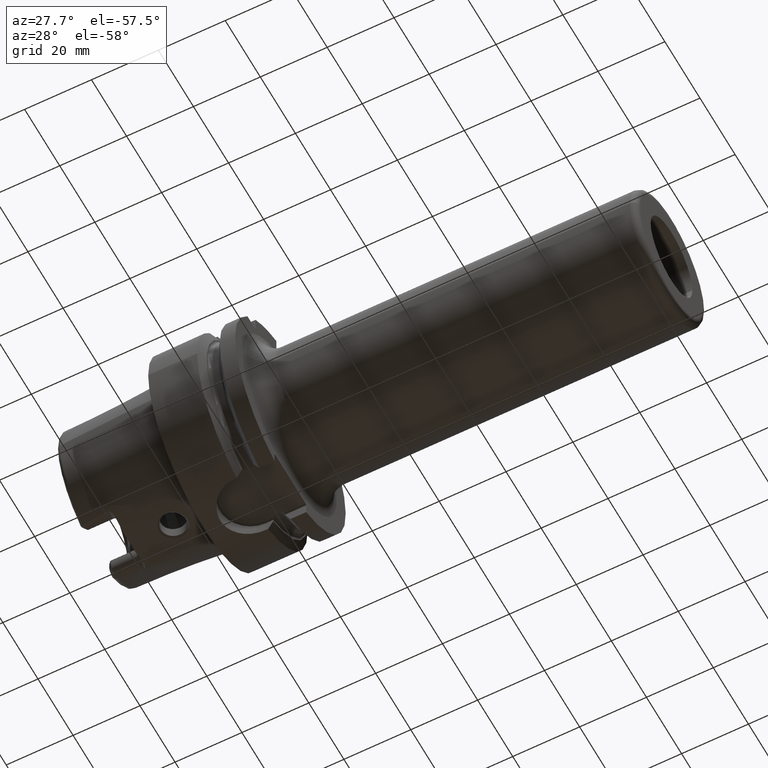
[diagram: clean part render]
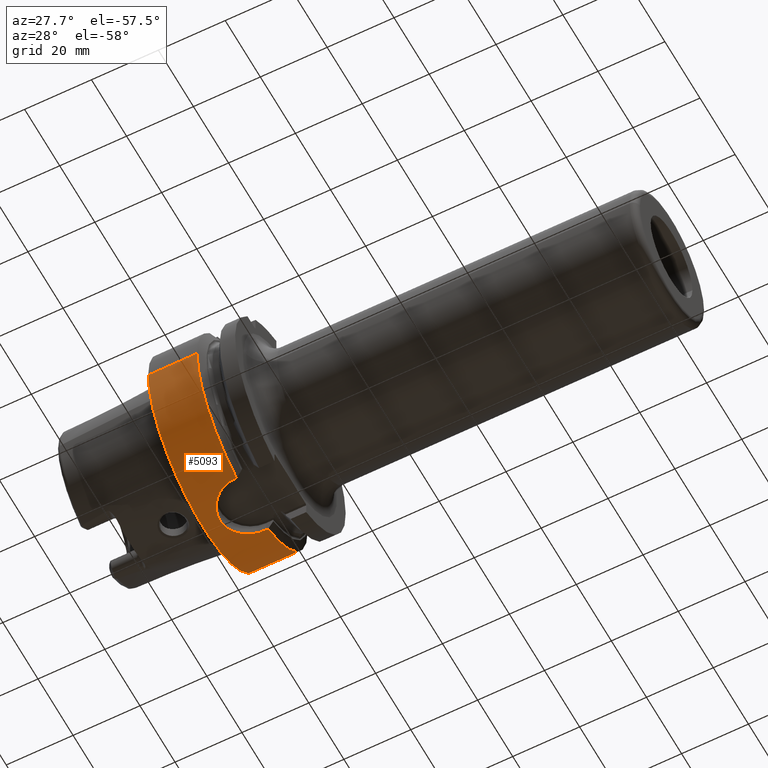
[diagram: same view with one face highlighted and labeled with its STEP entity id]
A machine part, auxiliary view. The second image highlights one B-rep face of the part: STEP entity #5093.
In plain terms, the highlighted cylindrical surface (partial cylindrical patch) has radius 31.5 mm, axis along (1, 0, 0).
Its self-contained STEP definition (entity closure, byte-faithful):
#1073=CARTESIAN_POINT('',(-1.421085471520E-14,0.E0,0.E0));
#1074=DIRECTION('',(-1.E0,0.E0,0.E0));
#1075=DIRECTION('',(0.E0,1.E0,0.E0));
#1076=AXIS2_PLACEMENT_3D('',#1073,#1074,#1075);
#1124=CARTESIAN_POINT('',(2.E0,3.15E1,-1.916034746595E-14));
#1126=CARTESIAN_POINT('',(1.2E1,3.15E1,0.E0));
#1747=CARTESIAN_POINT('',(1.39675E1,9.0175E0,-3.018169467989E1));
#1748=CARTESIAN_POINT('',(1.358558656281E1,9.0175E0,-3.018169467989E1));
#1749=CARTESIAN_POINT('',(1.282118465468E1,8.969691357916E0,-3.019604517684E1));
#1750=CARTESIAN_POINT('',(1.165591828593E1,8.743491566228E0,-3.026274300150E1));
#1751=CARTESIAN_POINT('',(1.052276298313E1,8.361963120688E0,-3.037104920547E1));
#1752=CARTESIAN_POINT('',(9.456122836012E0,7.837772025634E0,-3.051135915032E1));
#1753=CARTESIAN_POINT('',(8.470252282138E0,7.180724754911E0,-3.067358430769E1));
#1754=CARTESIAN_POINT('',(7.575631308163E0,6.398050863983E0,-3.084741609441E1));
#1755=CARTESIAN_POINT('',(6.786194961893E0,5.497065304782E0,-3.102161724462E1));
#1756=CARTESIAN_POINT('',(6.130229967676E0,4.511622175765E0,-3.118093411543E1));
#1757=CARTESIAN_POINT('',(5.609342792779E0,3.453031312959E0,-3.131662634576E1));
#1758=CARTESIAN_POINT('',(5.228345621102E0,2.326812347583E0,-3.142101017036E1));
#1759=CARTESIAN_POINT('',(4.999797746036E0,1.164288452435E0,-3.148568890825E1));
#1760=CARTESIAN_POINT('',(4.925086592477E0,-1.642939922344E-4,
-3.150715972921E1));
#1761=CARTESIAN_POINT('',(4.999855898167E0,-1.164866928839E0,
-3.148567217088E1));
#1762=CARTESIAN_POINT('',(5.228566513789E0,-2.327652949522E0,
-3.142094829471E1));
#1763=CARTESIAN_POINT('',(5.609617740094E0,-3.453657849156E0,
-3.131655310854E1));
#1764=CARTESIAN_POINT('',(6.130421690937E0,-4.511937610781E0,
-3.118088635565E1));
#1765=CARTESIAN_POINT('',(6.786402135999E0,-5.497346241188E0,
-3.102156844966E1));
#1766=CARTESIAN_POINT('',(7.576014991373E0,-6.398444919226E0,
-3.084733497918E1));
#1767=CARTESIAN_POINT('',(8.470738074749E0,-7.181093772441E0,
-3.067349724349E1));
#1768=CARTESIAN_POINT('',(9.456668390199E0,-7.838101066607E0,
-3.051127521442E1));
#1769=CARTESIAN_POINT('',(1.052385858790E1,-8.362443708215E0,
-3.037091729406E1));
#1770=CARTESIAN_POINT('',(1.165737665338E1,-8.743869582945E0,
-3.026263280158E1));
#1771=CARTESIAN_POINT('',(1.282210884292E1,-8.969775642486E0,
-3.019601972103E1));
#1772=CARTESIAN_POINT('',(1.358595047E1,-9.0175E0,-3.018169467989E1));
#1773=CARTESIAN_POINT('',(1.39675E1,-9.0175E0,-3.018169467989E1));
#1775=DIRECTION('',(1.E0,0.E0,0.E0));
#1776=VECTOR('',#1775,6.550009252407E-1);
#1777=CARTESIAN_POINT('',(1.39675E1,9.0175E0,-3.018169467989E1));
#1778=LINE('',#1777,#1776);
#1779=CARTESIAN_POINT('',(1.462250092524E1,0.E0,0.E0));
#1780=DIRECTION('',(1.E0,0.E0,0.E0));
#1781=DIRECTION('',(0.E0,2.862698412698E-1,-9.581490374568E-1));
#1782=AXIS2_PLACEMENT_3D('',#1779,#1780,#1781);
#1784=DIRECTION('',(-1.E0,0.E0,0.E0));
#1785=VECTOR('',#1784,2.622500925241E0);
#1786=CARTESIAN_POINT('',(1.462250092524E1,3.15E1,0.E0));
#1787=LINE('',#1786,#1785);
#1788=CARTESIAN_POINT('',(7.E0,3.110064308017E1,-5.E0));
#1789=CARTESIAN_POINT('',(7.237711971861E0,3.110064308017E1,-5.E0));
#1790=CARTESIAN_POINT('',(7.708364793932E0,3.110604176585E1,-4.966603280739E0));
#1791=CARTESIAN_POINT('',(8.409071627816E0,3.113002370339E1,-4.815048141531E0));
#1792=CARTESIAN_POINT('',(9.077383280619E0,3.116768201896E1,-4.566768250610E0));
#1793=CARTESIAN_POINT('',(9.709737219660E0,3.121653000009E1,-4.222389763166E0));
#1794=CARTESIAN_POINT('',(1.028259694179E1,3.127184472959E1,-3.794310232818E0));
#1795=CARTESIAN_POINT('',(1.079381736502E1,3.133002109497E1,-3.283144879213E0));
#1796=CARTESIAN_POINT('',(1.122187341968E1,3.138511895323E1,-2.710559209569E0));
#1797=CARTESIAN_POINT('',(1.156650397528E1,3.143365111660E1,-2.077946235915E0));
#1798=CARTESIAN_POINT('',(1.181475018474E1,3.147092885130E1,-1.410108381556E0));
#1799=CARTESIAN_POINT('',(1.196660689769E1,3.149467147123E1,
-7.086190467967E-1));
#1800=CARTESIAN_POINT('',(1.2E1,3.15E1,-2.377578867780E-1));
#1801=CARTESIAN_POINT('',(1.2E1,3.15E1,0.E0));
#1803=CARTESIAN_POINT('',(2.E0,3.15E1,-1.916034746595E-14));
#1804=CARTESIAN_POINT('',(2.E0,3.15E1,-2.377563632343E-1));
#1805=CARTESIAN_POINT('',(2.033376819090E0,3.149467390288E1,
-7.086329282889E-1));
#1806=CARTESIAN_POINT('',(2.185379667149E0,3.147090888892E1,-1.410571551366E0));
#1807=CARTESIAN_POINT('',(2.433605027219E0,3.143363519165E1,-2.078170817110E0));
#1808=CARTESIAN_POINT('',(2.778328809062E0,3.138509141893E1,-2.710884364051E0));
#1809=CARTESIAN_POINT('',(3.206392404829E0,3.132999596018E1,-3.283376693298E0));
#1810=CARTESIAN_POINT('',(3.717592314676E0,3.127182433739E1,-3.794478939285E0));
#1811=CARTESIAN_POINT('',(4.290556434518E0,3.121650481486E1,-4.222574092482E0));
#1812=CARTESIAN_POINT('',(4.922767506481E0,3.116767216438E1,-4.566833856024E0));
#1813=CARTESIAN_POINT('',(5.591173550853E0,3.113001241939E1,-4.815121163512E0));
#1814=CARTESIAN_POINT('',(6.291762024521E0,3.110604002637E1,-4.966613612597E0));
#1815=CARTESIAN_POINT('',(6.762337956938E0,3.110064308017E1,-5.E0));
#1816=CARTESIAN_POINT('',(7.E0,3.110064308017E1,-5.E0));
#1818=DIRECTION('',(-1.E0,0.E0,1.086605287208E-14));
#1819=VECTOR('',#1818,2.E0);
#1820=CARTESIAN_POINT('',(2.E0,3.15E1,-1.916034746595E-14));
#1821=LINE('',#1820,#1819);
#1822=DIRECTION('',(-1.E0,0.E0,0.E0));
#1823=VECTOR('',#1822,1.462250092524E1);
#1824=CARTESIAN_POINT('',(1.462250092524E1,-3.15E1,0.E0));
#1825=LINE('',#1824,#1823);
#1826=CARTESIAN_POINT('',(1.462250092524E1,0.E0,0.E0));
#1827=DIRECTION('',(1.E0,0.E0,0.E0));
#1828=DIRECTION('',(0.E0,-1.E0,0.E0));
#1829=AXIS2_PLACEMENT_3D('',#1826,#1827,#1828);
#1831=DIRECTION('',(1.E0,0.E0,0.E0));
#1832=VECTOR('',#1831,6.550009252407E-1);
#1833=CARTESIAN_POINT('',(1.39675E1,-9.0175E0,-3.018169467989E1));
#1834=LINE('',#1833,#1832);
#2651=CARTESIAN_POINT('',(-1.421085471520E-14,3.15E1,0.E0));
#2652=CARTESIAN_POINT('',(-1.421085471520E-14,-3.15E1,0.E0));
#2653=VERTEX_POINT('',#2651);
#2654=VERTEX_POINT('',#2652);
#2872=CARTESIAN_POINT('',(1.462250092524E1,-3.15E1,0.E0));
#2873=VERTEX_POINT('',#2872);
#2900=CARTESIAN_POINT('',(7.E0,3.110064308017E1,-5.E0));
#2901=VERTEX_POINT('',#2900);
#2902=VERTEX_POINT('',#1124);
#2903=VERTEX_POINT('',#1126);
#2904=CARTESIAN_POINT('',(1.462250092524E1,3.15E1,0.E0));
#2905=VERTEX_POINT('',#2904);
#2992=CARTESIAN_POINT('',(1.39675E1,-9.0175E0,-3.018169467989E1));
#2993=VERTEX_POINT('',#2992);
#2994=CARTESIAN_POINT('',(1.39675E1,9.0175E0,-3.018169467989E1));
#2995=VERTEX_POINT('',#2994);
#3030=CARTESIAN_POINT('',(1.462250092524E1,9.0175E0,-3.018169467989E1));
#3031=VERTEX_POINT('',#3030);
#3032=CARTESIAN_POINT('',(1.462250092524E1,-9.0175E0,-3.018169467989E1));
#3033=VERTEX_POINT('',#3032);
#5069=CARTESIAN_POINT('',(-3.49E1,0.E0,0.E0));
#5070=DIRECTION('',(1.E0,0.E0,0.E0));
#5071=DIRECTION('',(0.E0,-1.E0,0.E0));
#5072=AXIS2_PLACEMENT_3D('',#5069,#5070,#5071);
#5073=CYLINDRICAL_SURFACE('',#5072,3.15E1);
#5075=ORIENTED_EDGE('',*,*,#5074,.F.);
#5076=ORIENTED_EDGE('',*,*,#4559,.T.);
#5078=ORIENTED_EDGE('',*,*,#5077,.T.);
#5079=ORIENTED_EDGE('',*,*,#4417,.T.);
#5081=ORIENTED_EDGE('',*,*,#5080,.F.);
#5083=ORIENTED_EDGE('',*,*,#5082,.F.);
#5084=ORIENTED_EDGE('',*,*,#4411,.T.);
#5085=ORIENTED_EDGE('',*,*,#4386,.T.);
#5086=ORIENTED_EDGE('',*,*,#4408,.F.);
#5088=ORIENTED_EDGE('',*,*,#5087,.T.);
#5090=ORIENTED_EDGE('',*,*,#5089,.F.);
#5091=EDGE_LOOP('',(#5075,#5076,#5078,#5079,#5081,#5083,#5084,#5085,#5086,#5088,
#5090));
#5092=FACE_OUTER_BOUND('',#5091,.F.);
#5093=ADVANCED_FACE('',(#5092),#5073,.T.);
#1077=CIRCLE('',#1076,3.15E1);
#1774=B_SPLINE_CURVE_WITH_KNOTS('',3,(#1747,#1748,#1749,#1750,#1751,#1752,#1753,
#1754,#1755,#1756,#1757,#1758,#1759,#1760,#1761,#1762,#1763,#1764,#1765,#1766,
#1767,#1768,#1769,#1770,#1771,#1772,#1773),.UNSPECIFIED.,.F.,.F.,(4,1,1,1,1,1,1,
1,1,1,1,1,1,1,1,1,1,1,1,1,1,1,1,1,4),(0.E0,4.166666666667E-2,8.333333333333E-2,
1.25E-1,1.666666666667E-1,2.083333333333E-1,2.5E-1,2.916666666667E-1,
3.333333333333E-1,3.75E-1,4.166666666667E-1,4.583333333333E-1,5.E-1,
5.416666666667E-1,5.833333333333E-1,6.25E-1,6.666666666667E-1,7.083333333333E-1,
7.5E-1,7.916666666667E-1,8.333333333333E-1,8.75E-1,9.166666666667E-1,
9.583333333333E-1,1.E0),.UNSPECIFIED.);
#1783=CIRCLE('',#1782,3.15E1);
#1802=B_SPLINE_CURVE_WITH_KNOTS('',3,(#1788,#1789,#1790,#1791,#1792,#1793,#1794,
#1795,#1796,#1797,#1798,#1799,#1800,#1801),.UNSPECIFIED.,.F.,.F.,(4,1,1,1,1,1,1,
1,1,1,1,4),(0.E0,9.090909090909E-2,1.818181818182E-1,2.727272727273E-1,
3.636363636364E-1,4.545454545455E-1,5.454545454545E-1,6.363636363636E-1,
7.272727272727E-1,8.181818181818E-1,9.090909090909E-1,1.E0),.UNSPECIFIED.);
#1817=B_SPLINE_CURVE_WITH_KNOTS('',3,(#1803,#1804,#1805,#1806,#1807,#1808,#1809,
#1810,#1811,#1812,#1813,#1814,#1815,#1816),.UNSPECIFIED.,.F.,.F.,(4,1,1,1,1,1,1,
1,1,1,1,4),(0.E0,9.090909090909E-2,1.818181818182E-1,2.727272727273E-1,
3.636363636364E-1,4.545454545455E-1,5.454545454545E-1,6.363636363636E-1,
7.272727272727E-1,8.181818181818E-1,9.090909090909E-1,1.E0),.UNSPECIFIED.);
#1830=CIRCLE('',#1829,3.15E1);
#4386=EDGE_CURVE('',#2653,#2654,#1077,.T.);
#4408=EDGE_CURVE('',#2873,#2654,#1825,.T.);
#4411=EDGE_CURVE('',#2902,#2653,#1821,.T.);
#4417=EDGE_CURVE('',#2905,#2903,#1787,.T.);
#4559=EDGE_CURVE('',#2995,#3031,#1778,.T.);
#5074=EDGE_CURVE('',#2995,#2993,#1774,.T.);
#5077=EDGE_CURVE('',#3031,#2905,#1783,.T.);
#5080=EDGE_CURVE('',#2901,#2903,#1802,.T.);
#5082=EDGE_CURVE('',#2902,#2901,#1817,.T.);
#5087=EDGE_CURVE('',#2873,#3033,#1830,.T.);
#5089=EDGE_CURVE('',#2993,#3033,#1834,.T.);